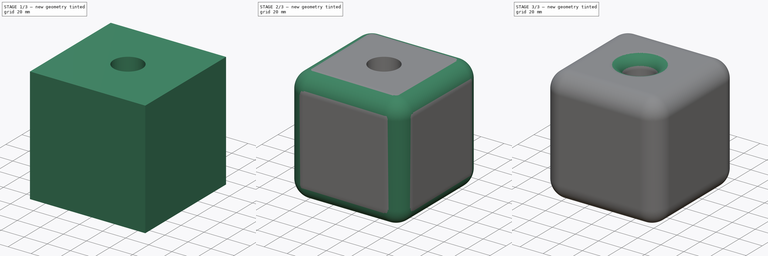
[diagram: build sequence overview — one tinted view per stage of 3, left to right]
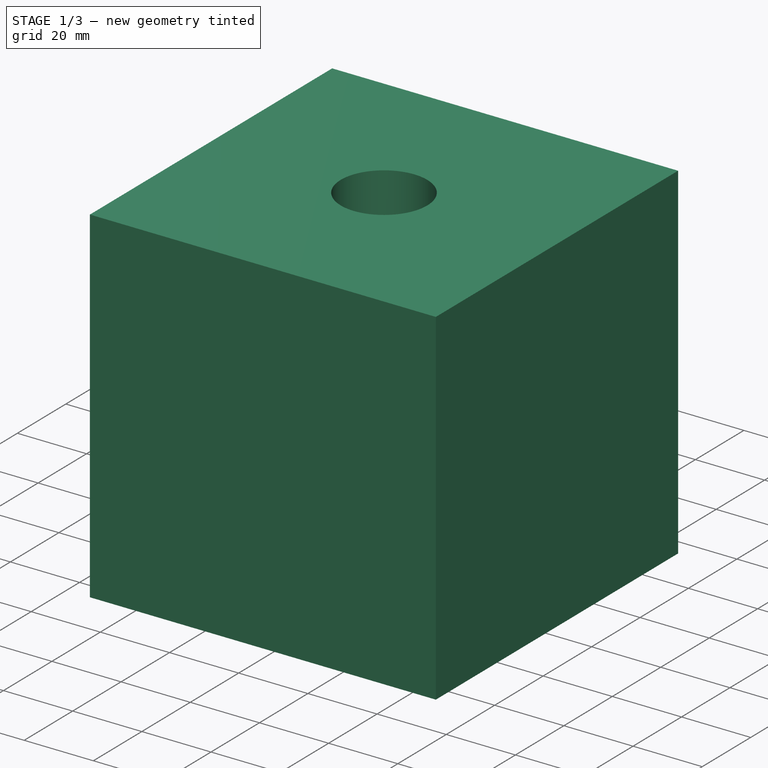
[diagram: stage 1 of 3 — iso view after this stage's code; geometry added in this stage tinted green]
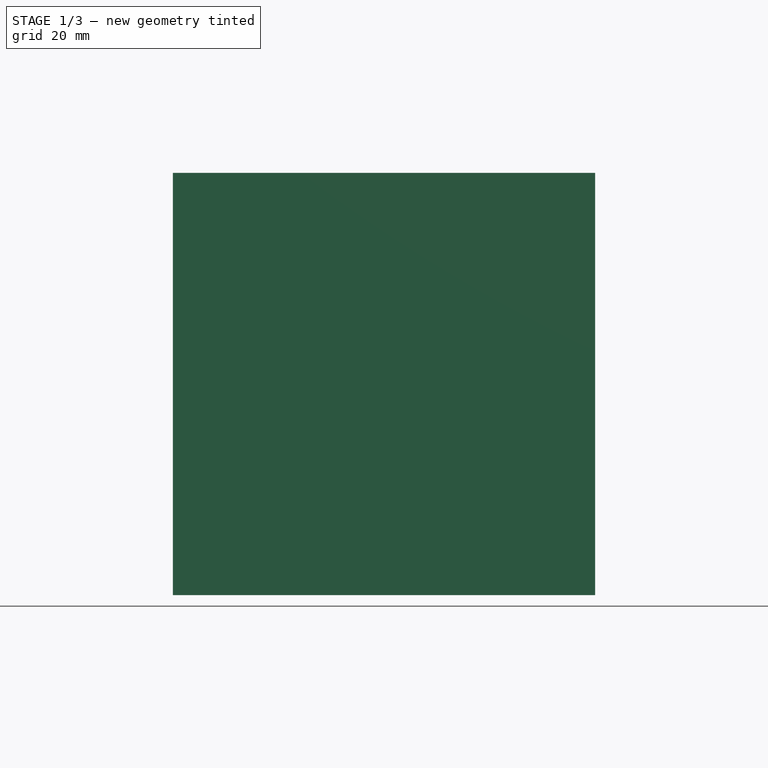
[diagram: stage 1 of 3 — front view after this stage's code; geometry added in this stage tinted green]
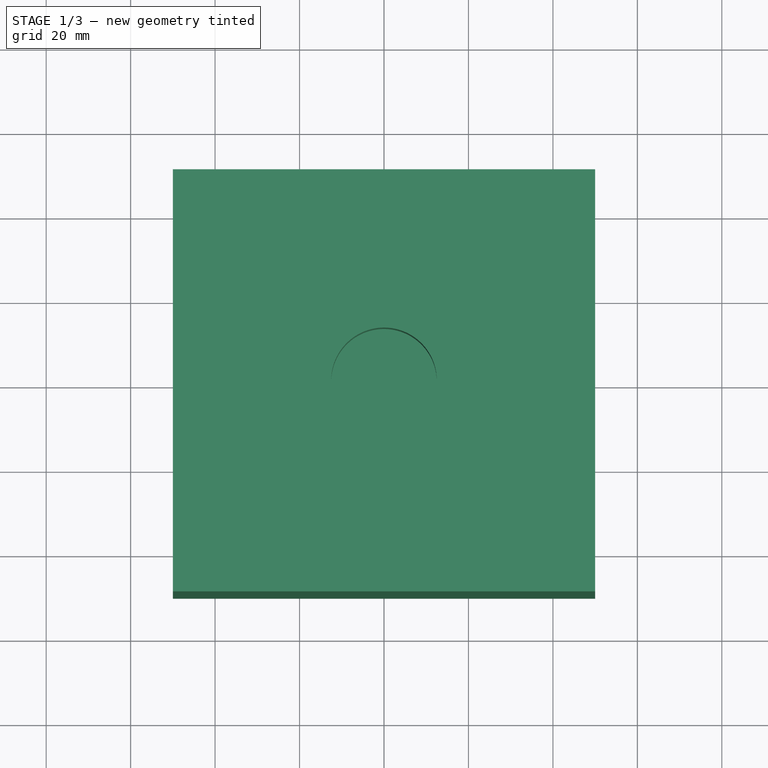
[diagram: stage 1 of 3 — top view after this stage's code; geometry added in this stage tinted green]
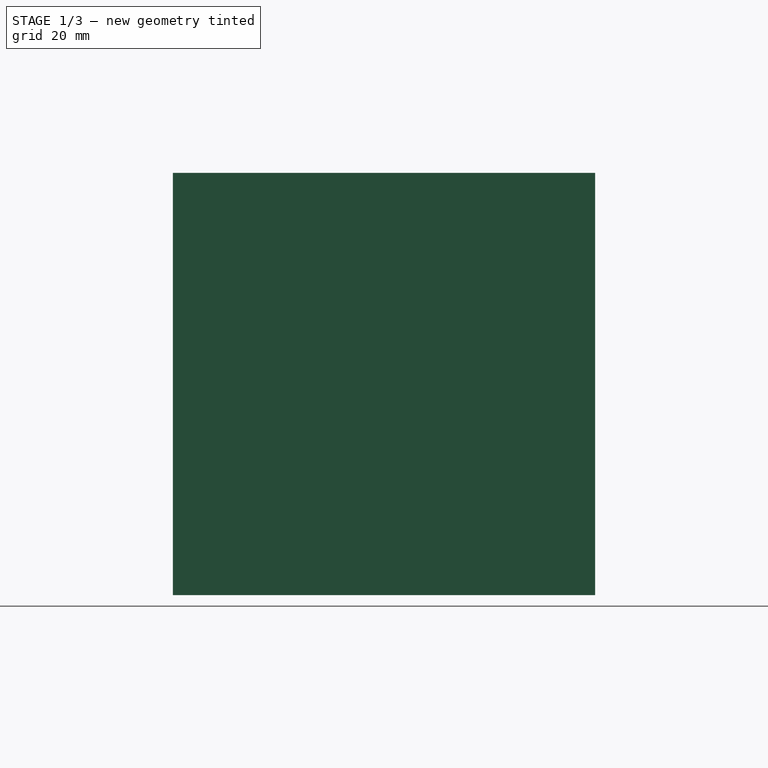
[diagram: stage 1 of 3 — right view after this stage's code; geometry added in this stage tinted green]
FCSTD DOCUMENT  (FreeCAD 2023.521R36908 (Git))
Label: test
License: All rights reserved
objects: PartDesign::Fillet×5, Sketcher::SketchObject×2, PartDesign::Pad×1, PartDesign::Pocket×1, Spreadsheet::Sheet×1, PartDesign::Body×1
note: 26 computed .brp shape members not serialized (recipe doc carries the construction recipe); baked Part::Feature solids carry a one-line shape summary decoded from their .brp

FEATURE [Sketcher::SketchObject] Sketch001  label="Square"
  ArcFitTolerance = 1e-06
  ExternalBSplineMaxDegree = 5
  ExternalBSplineTolerance = 0.0001
  FullyConstrained = true
  InternalTolerance = 1e-06
  InvalidShape = false
  MakeInternals = false
  TreeRank = 12
  ValidateShape = false
  expr: Constraints.Height = <<parametes>>.width
  expr: Constraints.width = <<parametes>>.length
  expr: Constraints[10] = <<parametes>>.length / 2
  expr: Constraints[11] = <<parametes>>.width / 2
  sketch-geometry (4):
    g0: LineSegment StartX=-50 StartY=50 StartZ=0 EndX=50 EndY=50 EndZ=0
    g1: LineSegment StartX=50 StartY=50 StartZ=0 EndX=50 EndY=-50 EndZ=0
    g2: LineSegment StartX=50 StartY=-50 StartZ=0 EndX=-50 EndY=-50 EndZ=0
    g3: LineSegment StartX=-50 StartY=-50 StartZ=0 EndX=-50 EndY=50 EndZ=0
  constraints (12):
    c: Horizontal(g0)
    c: Horizontal(g2)
    c: Coincident(g0,g3)
    c: Coincident(g0,g1)
    c: Coincident(g1,g2)
    c: Coincident(g3,g2)
    c: Vertical(g1)
    c: Vertical(g3)
    c: DistanceX(g0,g0) = 100  'width'
    c: DistanceY(g1,g1) = 100  'Height'
    c: DistanceX(g-1,g0) = 50
    c: DistanceY(g0) = 50
FEATURE [PartDesign::Pad] Pad  label="Cube"
  AddSubType = 0
  AlongSketchNormal = false
  AutoTaperInnerAngle = true
  CheckUpToFaceLimits = true
  ClaimChildren = false
  Direction = (0,0,1)
  Fit = 0
  FitJoin = 0
  InnerFit = 0
  InnerFitJoin = 0
  InvalidShape = false
  Length = 100
  Length2 = 10
  Linearize = true
  NewSolid = false
  Profile = -> Sketch001
  ReferenceAxis = -> Sketch001 [N_Axis]
  Suppress = false
  TaperInnerAngle = 0
  TaperInnerAngleRev = 0
  TreeRank = 13
  Type = 0
  ValidateShape = true
  _ProfileBasedVersion = 1
  expr: Length = <<parametes>>.height
FEATURE [Sketcher::SketchObject] Sketch  label="circle"
  ArcFitTolerance = 1e-06
  AttachmentSupport = -> [Pad]
  ExternalBSplineMaxDegree = 5
  ExternalBSplineTolerance = 0.0001
  FullyConstrained = true
  InternalTolerance = 1e-06
  InvalidShape = false
  MakeInternals = false
  MapMode = 5
  Placement = pos=(0,0,100) rot=(0,0,1;0rad)
  Support = -> [Pad]
  TreeRank = 14
  ValidateShape = false
  sketch-geometry (1):
    g0: Circle CenterX=0 CenterY=0 CenterZ=0 NormalX=0 NormalY=0 NormalZ=1 AngleXU=0 Radius=12.5
  constraints (2):
    c: Diameter(g0) = 25
    c: Coincident(g-1,g0)
FEATURE [PartDesign::Pocket] Pocket
  AddSubType = 1
  AlongSketchNormal = false
  AutoTaperInnerAngle = true
  BaseFeature = -> Pad
  CheckUpToFaceLimits = true
  ClaimChildren = false
  Direction = (0,0,-1)
  Fit = 0
  FitJoin = 0
  InnerFit = 0
  InnerFitJoin = 0
  InvalidShape = false
  Length = 20
  Length2 = 10
  Linearize = true
  NewSolid = false
  Profile = -> Sketch [Edge1]
  ReferenceAxis = -> Sketch [N_Axis]
  Suppress = false
  TaperInnerAngle = 0
  TaperInnerAngleRev = 0
  TreeRank = 15
  Type = 0
  ValidateShape = true
  _ProfileBasedVersion = 1
  _Version = 1
  expr: Length = <<parametes>>.pocket_depth
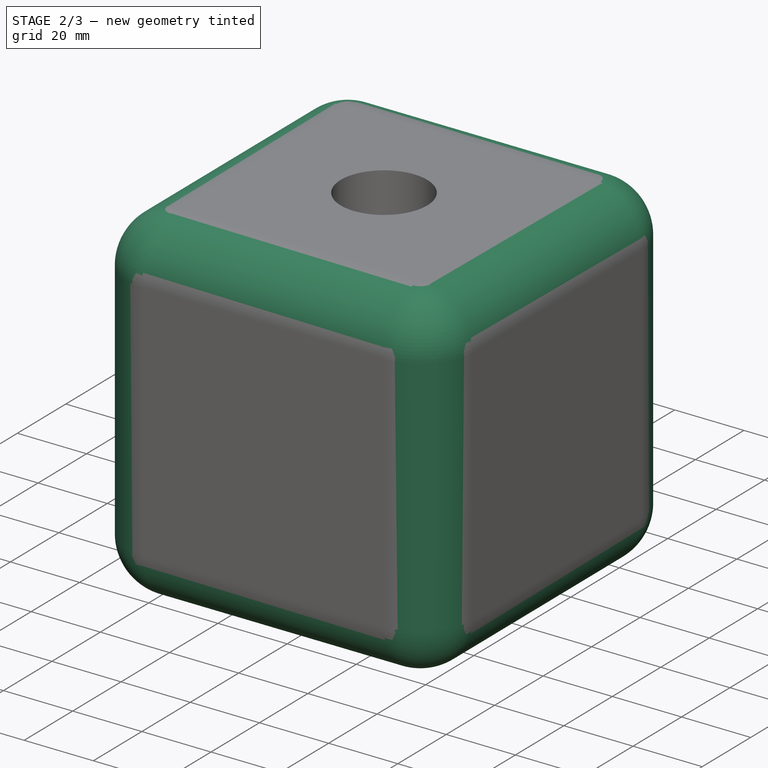
[diagram: stage 2 of 3 — iso view after this stage's code; geometry added in this stage tinted green]
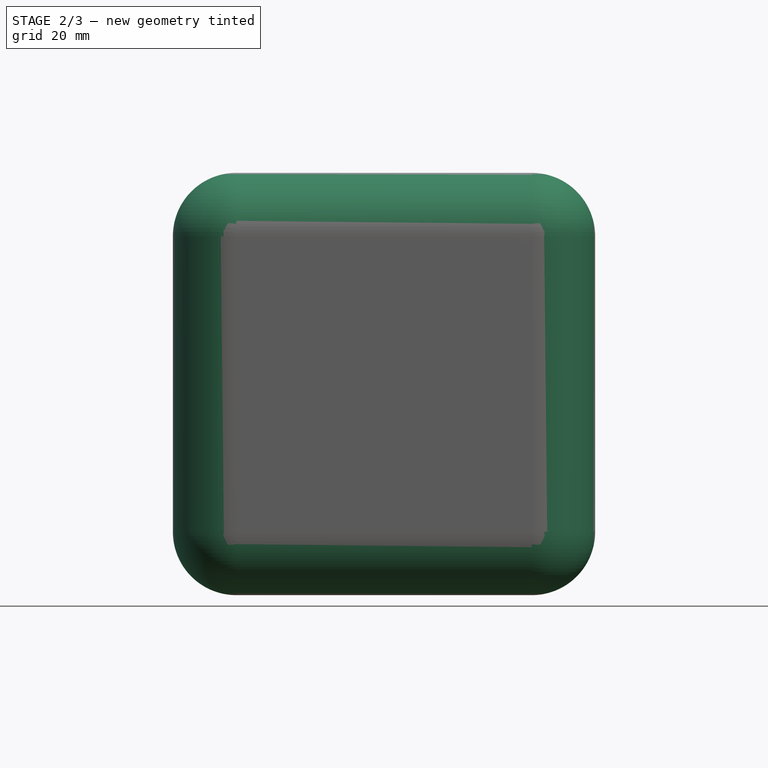
[diagram: stage 2 of 3 — front view after this stage's code; geometry added in this stage tinted green]
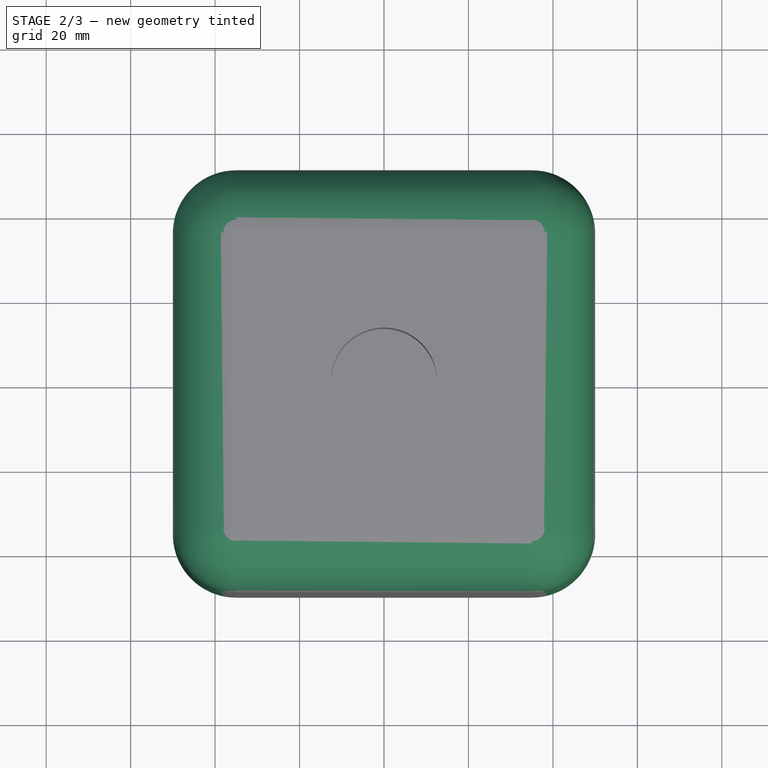
[diagram: stage 2 of 3 — top view after this stage's code; geometry added in this stage tinted green]
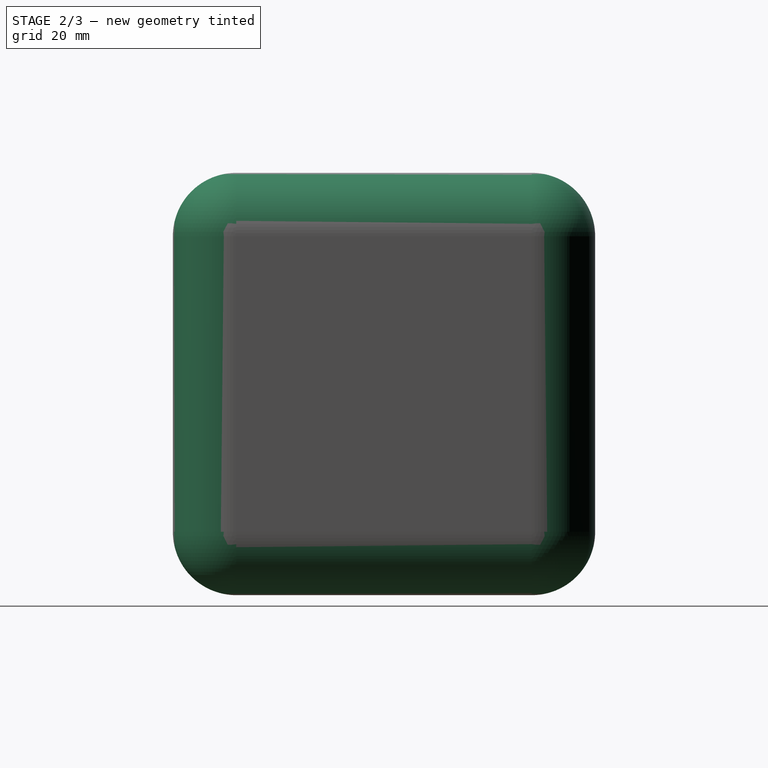
[diagram: stage 2 of 3 — right view after this stage's code; geometry added in this stage tinted green]
FEATURE [PartDesign::Fillet] Fillet  label="CubeVerticalEdges"
  AddSubType = 0
  Base = -> Pocket [Edge8,Edge5,Edge2,Edge1]
  BaseFeature = -> Pocket
  InvalidShape = false
  NewSolid = false
  Radius = 15
  SupportTransform = false
  Suppress = false
  TreeRank = 16
  UseAllEdges = false
  ValidateShape = true
  expr: Radius = <<parametes>>.cube_vertical_edge_fillet
FEATURE [PartDesign::Fillet] Fillet001  label="CubeVerticalTopEdges"
  AddSubType = 0
  Base = -> Fillet [Edge16,Edge13,Edge4,Edge15,Edge17,Edge19,Edge20,Edge18]
  BaseFeature = -> Fillet
  InvalidShape = false
  NewSolid = false
  Radius = 15
  SupportTransform = false
  Suppress = false
  TreeRank = 17
  UseAllEdges = false
  ValidateShape = true
  expr: Radius = <<parametes>>.cube_horizontal_top_edge_fillet
FEATURE [PartDesign::Fillet] Fillet002  label="CubeVerticalBottomEdges"
  AddSubType = 0
  Base = -> Fillet001 [Edge16,Edge14,Edge12,Edge6,Edge3,Edge11,Edge13,Edge15]
  BaseFeature = -> Fillet001
  InvalidShape = false
  NewSolid = false
  Radius = 15
  SupportTransform = false
  Suppress = false
  TreeRank = 18
  UseAllEdges = false
  ValidateShape = true
  expr: Radius = <<parametes>>.cube_horizontal_bottom_edge_fillet
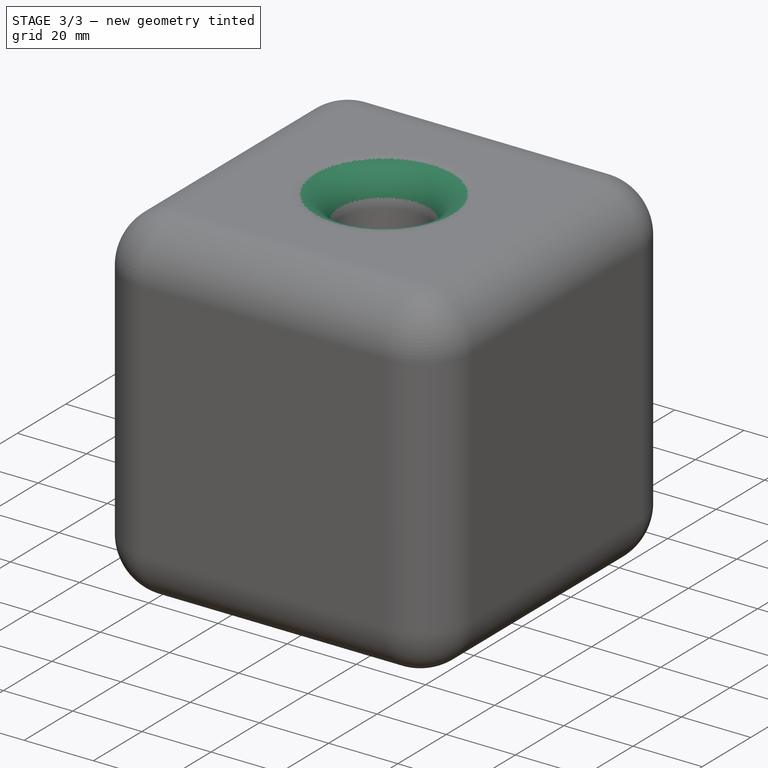
[diagram: stage 3 of 3 — iso view after this stage's code; geometry added in this stage tinted green]
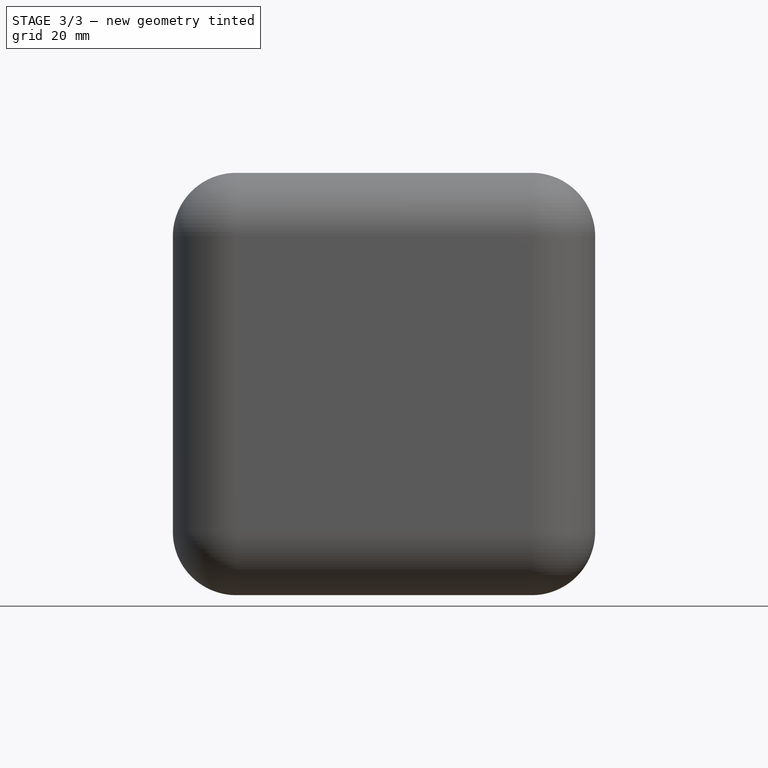
[diagram: stage 3 of 3 — front view after this stage's code; geometry added in this stage tinted green]
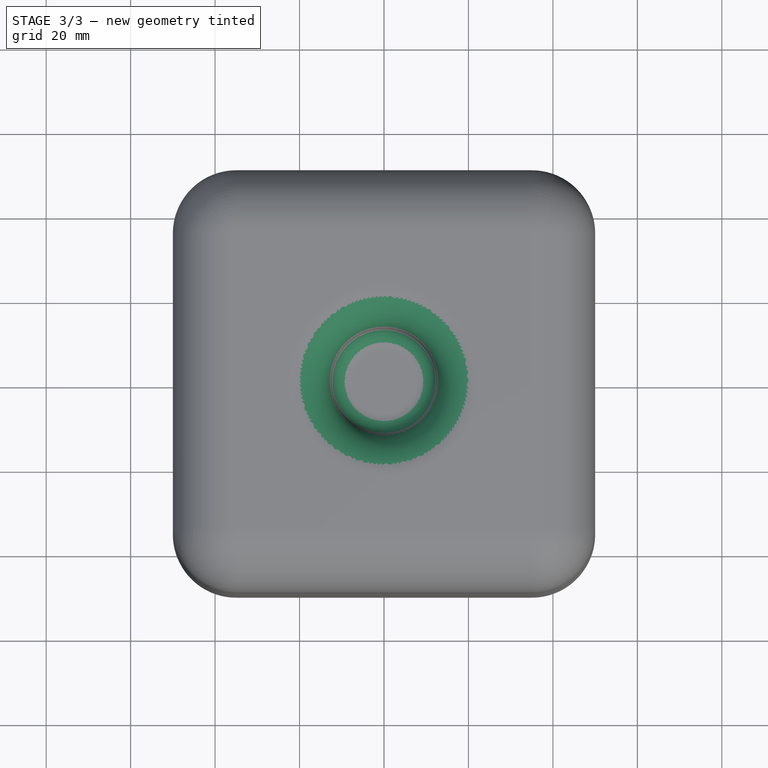
[diagram: stage 3 of 3 — top view after this stage's code; geometry added in this stage tinted green]
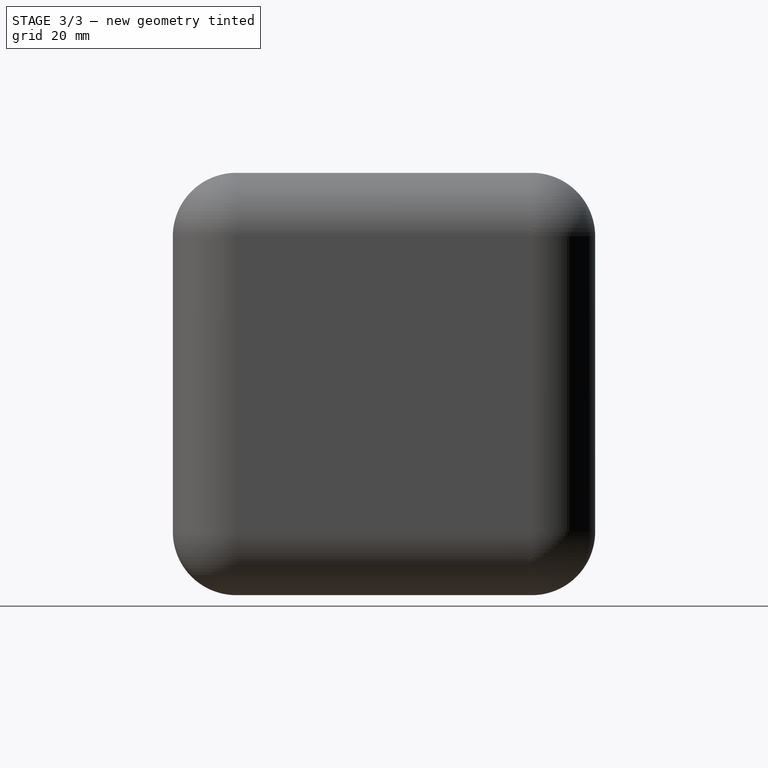
[diagram: stage 3 of 3 — right view after this stage's code; geometry added in this stage tinted green]
FEATURE [Spreadsheet::Sheet] Spreadsheet  label="parametes"
  PythonMode = false
  ShowCells = 0
  TreeRank = 19
  cells = A1=length; B1(length)=100; A2=width; B2(width)=100; A3=height; B3(height)=100; A4=pocket_diameter; B4(pocket_diameter)=60; A5=pocket_depth; B5(pocket_depth)=20; A6=pocket_top_fillet; B6(pocket_top_fillet)=10; A7=pocket_bottom_fillet; B7(pocket_bottom_fillet)=5; A8=cube_horizontal_top_edge_fillet; B8(cube_horizontal_top_edge_fillet)=15; A9=cube_horizontal_bottom_edge_fillet; B9(cube_horizontal_bottom_edge_fillet)=15; A10=cube_vertical_edge_fillet; B10(cube_vertical_edge_fillet)=15
FEATURE [PartDesign::Fillet] Fillet003
  AddSubType = 0
  Base = -> Fillet002 [Edge32]
  BaseFeature = -> Fillet002
  InvalidShape = false
  NewSolid = false
  Radius = 10
  SupportTransform = false
  Suppress = false
  TreeRank = 20
  UseAllEdges = false
  ValidateShape = true
  expr: Radius = <<parametes>>.pocket_top_fillet
FEATURE [PartDesign::Fillet] Fillet004  label="PocketBottomFillet"
  AddSubType = 0
  Base = -> Fillet003 [Edge21]
  BaseFeature = -> Fillet003
  InvalidShape = false
  NewSolid = false
  Radius = 5
  SupportTransform = false
  Suppress = false
  TreeRank = 21
  UseAllEdges = false
  ValidateShape = true
  expr: Radius = <<parametes>>.pocket_bottom_fillet
FEATURE [PartDesign::Body] Body
  AutoGroupSolids = false
  ClaimAllChildren = false
  ExportMode = 0
  Group = -> [Sketch001,Pad,Sketch,Pocket,Fillet,Fillet001,Fillet002,Fillet003,Fillet004]
  InvalidShape = false
  Origin = -> Origin
  Tip = -> Fillet004
  TreeRank = 10
  ValidateShape = false
  _ExportChildren = -> [Pad,Pocket,Fillet,Fillet001,Fillet002,Fillet003,Fillet004]
  _GroupVersion = 1
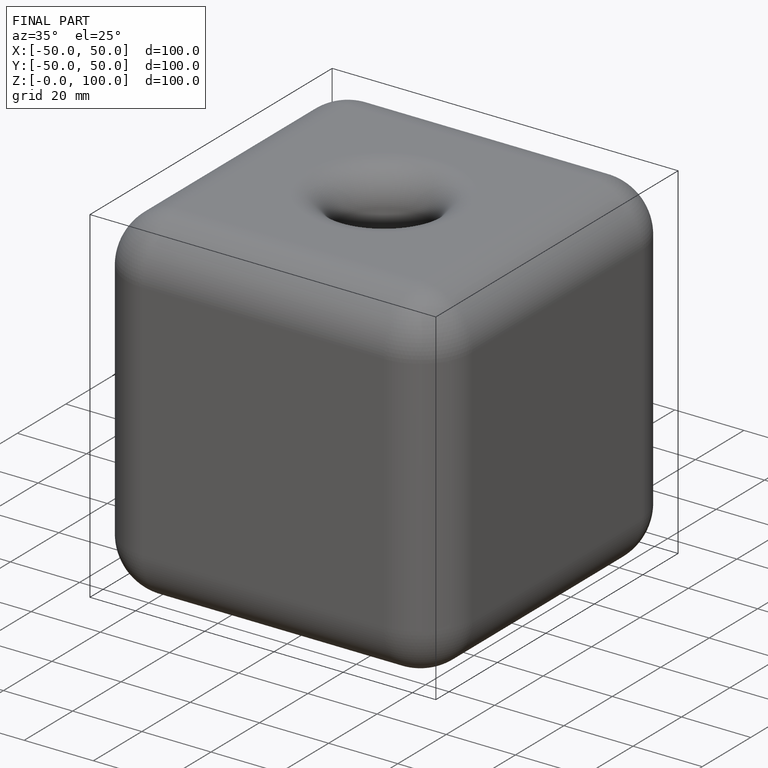
[diagram: finished part — iso view with bounding-box wireframe]
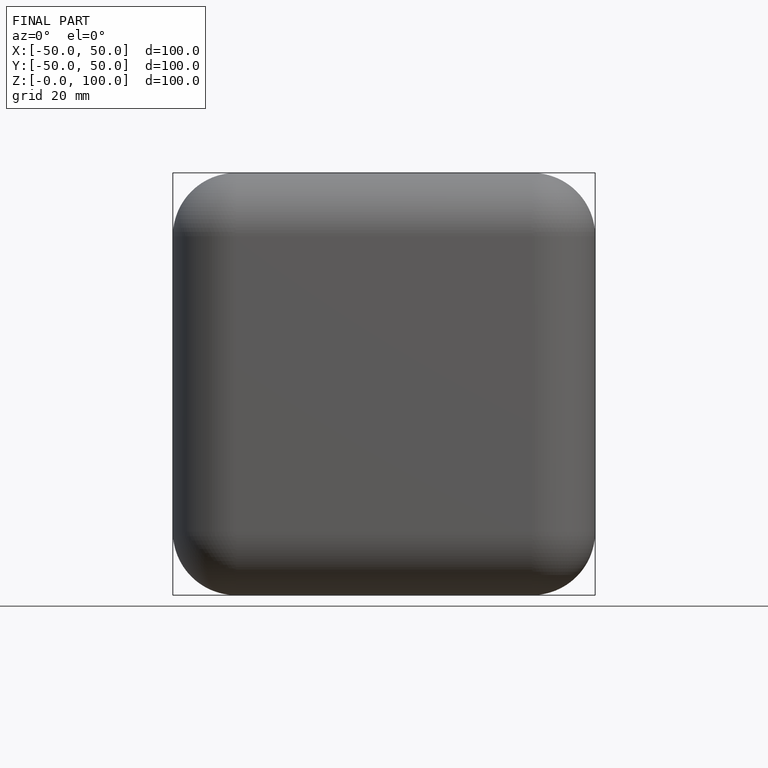
[diagram: finished part — front view with bounding-box wireframe]
